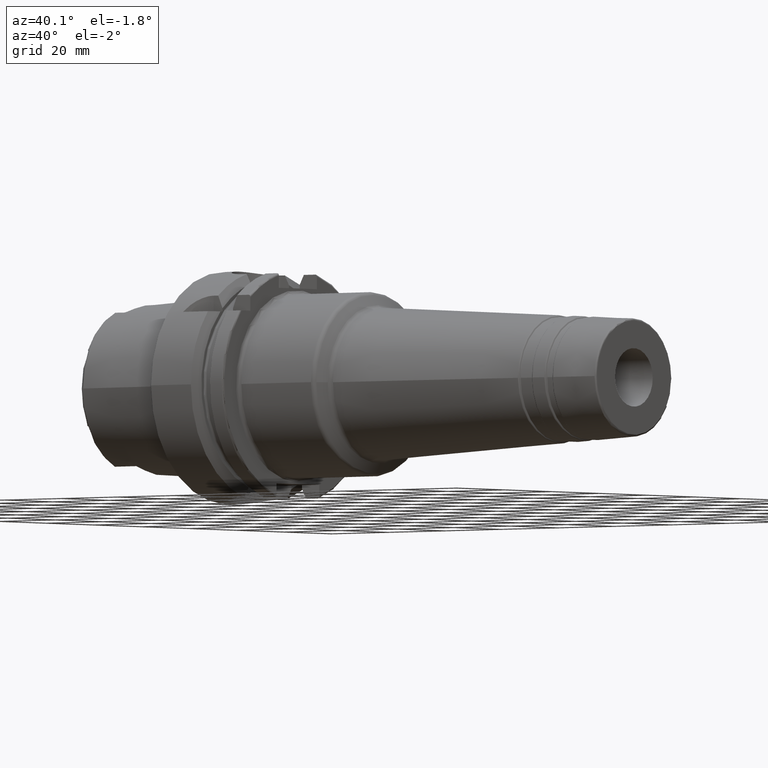
[diagram: clean part render]
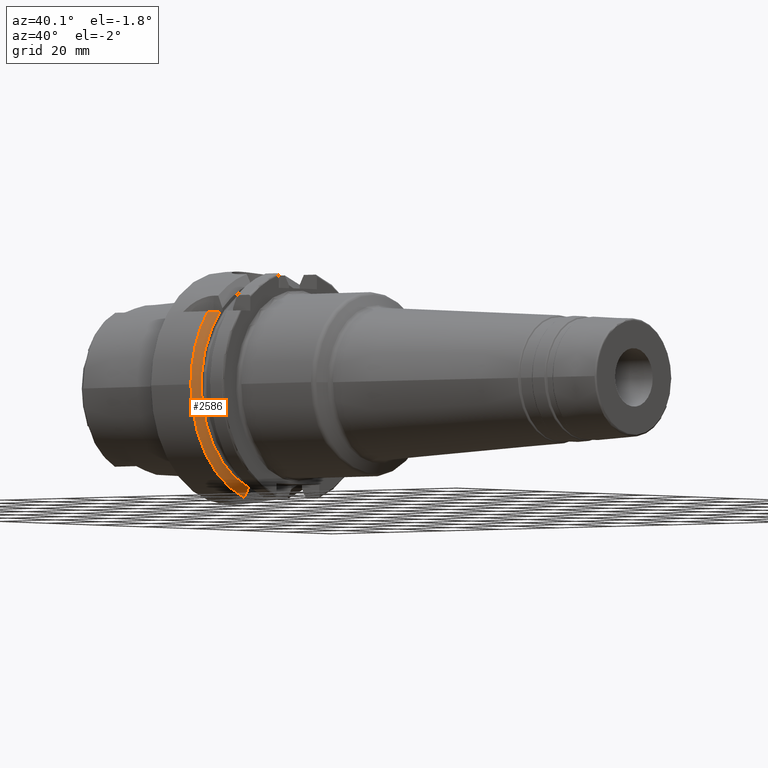
[diagram: same view with one face highlighted and labeled with its STEP entity id]
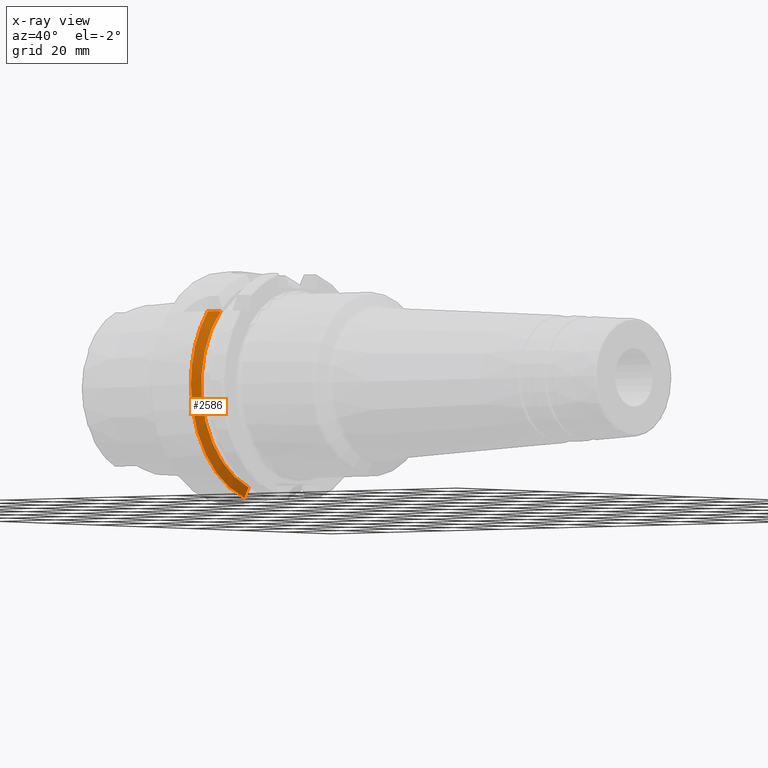
[diagram: x-ray of the same camera — body ghosted, the highlighted face saturated]
A machine part, auxiliary view. The second image highlights one B-rep face of the part: STEP entity #2586.
The next image is the same camera in x-ray: the body ghosted, the highlighted face saturated — about 0% of this face is hidden behind the body in this view.
In plain terms, the highlighted conical surface has half-angle 60 deg.
Its self-contained STEP definition (entity closure, byte-faithful):
#18=(
BOUNDED_CURVE()
B_SPLINE_CURVE(2,(#4915,#4916,#4917),.UNSPECIFIED.,.F.,.F.)
B_SPLINE_CURVE_WITH_KNOTS((3,3),(0.,0.378858277140999),.UNSPECIFIED.)
CURVE()
GEOMETRIC_REPRESENTATION_ITEM()
RATIONAL_B_SPLINE_CURVE((1.,1.00166199353823,1.))
REPRESENTATION_ITEM('')
);
#21=(
BOUNDED_CURVE()
B_SPLINE_CURVE(2,(#4975,#4976,#4977),.UNSPECIFIED.,.F.,.F.)
B_SPLINE_CURVE_WITH_KNOTS((3,3),(0.,0.311314369989024),.UNSPECIFIED.)
CURVE()
GEOMETRIC_REPRESENTATION_ITEM()
RATIONAL_B_SPLINE_CURVE((1.,1.00102053193451,1.))
REPRESENTATION_ITEM('')
);
#277=FACE_OUTER_BOUND('',#418,.T.);
#418=EDGE_LOOP('',(#2080,#2081,#2082,#2083,#2084));
#868=CIRCLE('',#2883,28.8975952641916);
#871=CIRCLE('',#2887,31.5);
#872=CIRCLE('',#2888,31.5);
#1131=VERTEX_POINT('',#4907);
#1134=VERTEX_POINT('',#4913);
#1141=VERTEX_POINT('',#4961);
#1145=VERTEX_POINT('',#4971);
#1146=VERTEX_POINT('',#4973);
#1477=EDGE_CURVE('',#1131,#1134,#18,.T.);
#1487=EDGE_CURVE('',#1131,#1141,#868,.T.);
#1492=EDGE_CURVE('',#1134,#1145,#871,.T.);
#1493=EDGE_CURVE('',#1145,#1146,#872,.T.);
#1494=EDGE_CURVE('',#1146,#1141,#21,.T.);
#2080=ORIENTED_EDGE('',*,*,#1477,.T.);
#2081=ORIENTED_EDGE('',*,*,#1492,.T.);
#2082=ORIENTED_EDGE('',*,*,#1493,.T.);
#2083=ORIENTED_EDGE('',*,*,#1494,.T.);
#2084=ORIENTED_EDGE('',*,*,#1487,.F.);
#2515=CONICAL_SURFACE('',#2886,30.1987976320958,1.0471975511966);
#2586=ADVANCED_FACE('',(#277),#2515,.T.);
#2883=AXIS2_PLACEMENT_3D('',#4962,#3512,#3513);
#2886=AXIS2_PLACEMENT_3D('',#4970,#3520,#3521);
#2887=AXIS2_PLACEMENT_3D('',#4972,#3522,#3523);
#2888=AXIS2_PLACEMENT_3D('',#4974,#3524,#3525);
#3512=DIRECTION('center_axis',(1.,0.,0.));
#3513=DIRECTION('ref_axis',(0.,0.,-1.));
#3520=DIRECTION('center_axis',(-1.,0.,0.));
#3521=DIRECTION('ref_axis',(0.,-0.966819045705046,-0.255462194584608));
#3522=DIRECTION('center_axis',(1.,0.,0.));
#3523=DIRECTION('ref_axis',(0.,0.,-1.));
#3524=DIRECTION('center_axis',(1.,0.,0.));
#3525=DIRECTION('ref_axis',(0.,0.,-1.));
#4907=CARTESIAN_POINT('',(16.125,-20.8583559288126,20.));
#4913=CARTESIAN_POINT('',(14.6225009252407,-24.3361870472759,20.));
#4915=CARTESIAN_POINT('Ctrl Pts',(16.125,-20.8583559288126,20.));
#4916=CARTESIAN_POINT('Ctrl Pts',(15.4315609602332,-22.5223452916167,20.));
#4917=CARTESIAN_POINT('Ctrl Pts',(14.6225009252407,-24.3361870472759,20.));
#4961=CARTESIAN_POINT('',(16.125,-9.,-27.4603534582684));
#4962=CARTESIAN_POINT('Origin',(16.125,0.,0.));
#4970=CARTESIAN_POINT('Origin',(15.3737504626203,0.,0.));
#4971=CARTESIAN_POINT('',(14.6225009252407,-31.5,-3.85763741731416E-15));
#4972=CARTESIAN_POINT('Origin',(14.6225009252407,0.,0.));
#4973=CARTESIAN_POINT('',(14.6225009252407,-9.,-30.1869176962472));
#4974=CARTESIAN_POINT('Origin',(14.6225009252407,0.,0.));
#4975=CARTESIAN_POINT('Ctrl Pts',(14.6225009252407,-9.,-30.1869176962472));
#4976=CARTESIAN_POINT('Ctrl Pts',(15.4092825889741,-9.,-28.7648946319013));
#4977=CARTESIAN_POINT('Ctrl Pts',(16.125,-9.,-27.4603534582684));